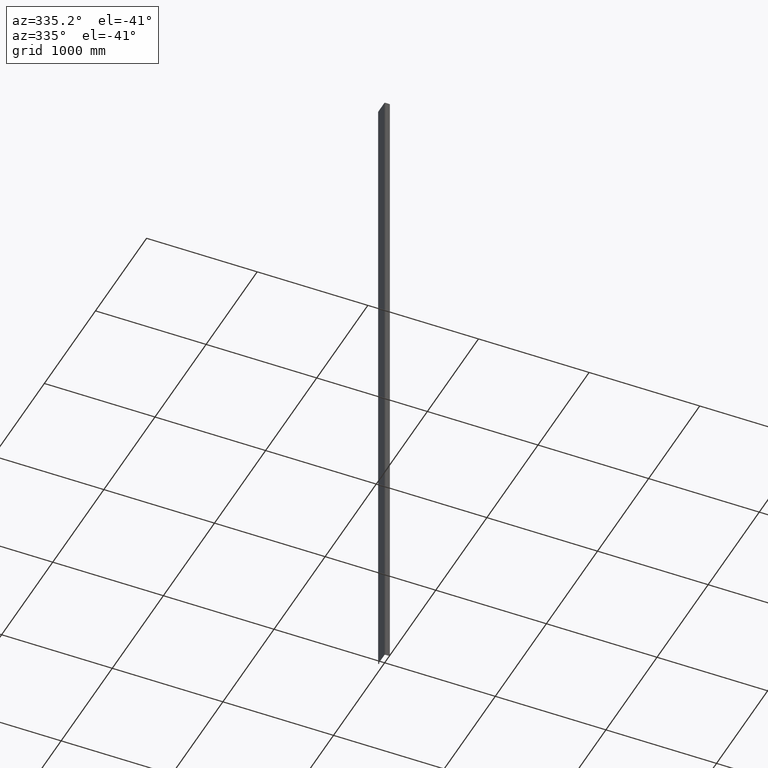
[diagram: clean part render]
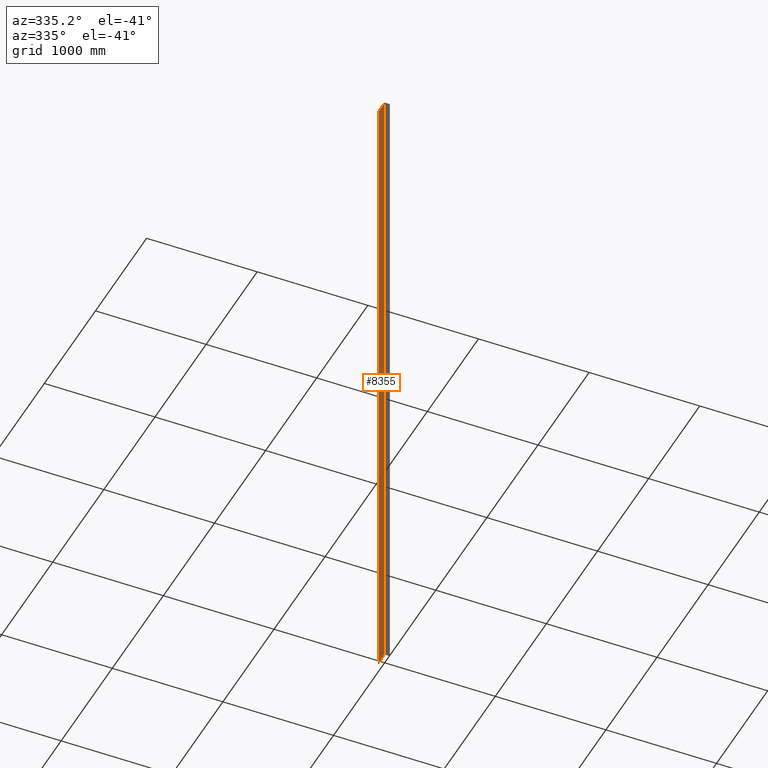
[diagram: same view with one face highlighted and labeled with its STEP entity id]
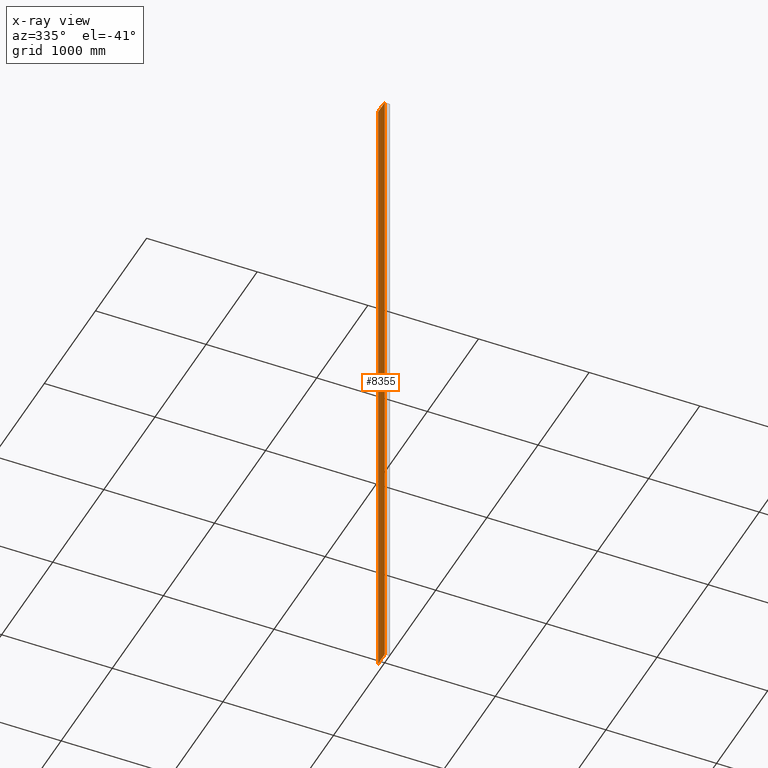
[diagram: x-ray of the same camera — body ghosted, the highlighted face saturated]
A machine part, auxiliary view. The second image highlights one B-rep face of the part: STEP entity #8355.
The next image is the same camera in x-ray: the body ghosted, the highlighted face saturated — about 0% of this face is hidden behind the body in this view.
In plain terms, the highlighted planar face has unit normal (1, 0, -0).
Its self-contained STEP definition (entity closure, byte-faithful):
#292 = VECTOR ( 'NONE', #12943, 1000.000000000000000 ) ;
#742 = ORIENTED_EDGE ( 'NONE', *, *, #2855, .F. ) ;
#799 = EDGE_CURVE ( 'NONE', #12389, #12668, #1431, .T. ) ;
#989 = CARTESIAN_POINT ( 'NONE',  ( -1.734723475976807100E-015, 126.2999999999838100, 3000.000000000000000 ) ) ;
#1431 = LINE ( 'NONE', #4673, #10690 ) ;
#1625 = VERTEX_POINT ( 'NONE', #989 ) ;
#2855 = EDGE_CURVE ( 'NONE', #1625, #9579, #8242, .T. ) ;
#4156 = DIRECTION ( 'NONE',  ( 1.392233929354566900E-017, -1.000000000000000000, 0.0000000000000000000 ) ) ;
#4373 = EDGE_CURVE ( 'NONE', #1625, #12389, #10388, .T. ) ;
#4673 = CARTESIAN_POINT ( 'NONE',  ( -1.734723475976807100E-015, 126.2999999999838100, -3000.000000000000000 ) ) ;
#4920 = EDGE_LOOP ( 'NONE', ( #5790, #6999, #742, #11131 ) ) ;
#5372 = CARTESIAN_POINT ( 'NONE',  ( -1.734723475976807100E-015, 126.2999999999838100, 3000.000000000000000 ) ) ;
#5499 = VECTOR ( 'NONE', #4156, 1000.000000000000000 ) ;
#5646 = FACE_OUTER_BOUND ( 'NONE', #4920, .T. ) ;
#5790 = ORIENTED_EDGE ( 'NONE', *, *, #799, .T. ) ;
#6128 = CARTESIAN_POINT ( 'NONE',  ( -1.734723475976807100E-015, 126.2999999999838100, 3000.000000000000000 ) ) ;
#6999 = ORIENTED_EDGE ( 'NONE', *, *, #11429, .F. ) ;
#7193 = CARTESIAN_POINT ( 'NONE',  ( -1.734723475976807100E-015, 126.2999999999838100, -3000.000000000000000 ) ) ;
#7211 = VECTOR ( 'NONE', #11102, 1000.000000000000000 ) ;
#7271 = PLANE ( 'NONE',  #9516 ) ;
#7318 = DIRECTION ( 'NONE',  ( 1.000000000000000000, 1.392233929354566600E-017, -0.0000000000000000000 ) ) ;
#8198 = CARTESIAN_POINT ( 'NONE',  ( -1.734723475976807100E-015, 126.2999999999838100, 3000.000000000000000 ) ) ;
#8242 = LINE ( 'NONE', #6128, #5499 ) ;
#8355 = ADVANCED_FACE ( 'NONE', ( #5646 ), #7271, .F. ) ;
#8359 = DIRECTION ( 'NONE',  ( -1.392233929354566600E-017, 1.000000000000000000, 0.0000000000000000000 ) ) ;
#8851 = LINE ( 'NONE', #9946, #7211 ) ;
#8975 = CARTESIAN_POINT ( 'NONE',  ( 0.0000000000000000000, 1.699999999910773100, -3000.000000000000000 ) ) ;
#9516 = AXIS2_PLACEMENT_3D ( 'NONE', #5372, #7318, #8359 ) ;
#9579 = VERTEX_POINT ( 'NONE', #9773 ) ;
#9773 = CARTESIAN_POINT ( 'NONE',  ( 0.0000000000000000000, 1.699999999910773100, 3000.000000000000000 ) ) ;
#9946 = CARTESIAN_POINT ( 'NONE',  ( 0.0000000000000000000, 1.699999999910773100, 3000.000000000000000 ) ) ;
#10388 = LINE ( 'NONE', #8198, #292 ) ;
#10690 = VECTOR ( 'NONE', #11795, 1000.000000000000000 ) ;
#11102 = DIRECTION ( 'NONE',  ( -0.0000000000000000000, -0.0000000000000000000, -1.000000000000000000 ) ) ;
#11131 = ORIENTED_EDGE ( 'NONE', *, *, #4373, .T. ) ;
#11429 = EDGE_CURVE ( 'NONE', #9579, #12668, #8851, .T. ) ;
#11795 = DIRECTION ( 'NONE',  ( 1.392233929354566900E-017, -1.000000000000000000, 0.0000000000000000000 ) ) ;
#12389 = VERTEX_POINT ( 'NONE', #7193 ) ;
#12668 = VERTEX_POINT ( 'NONE', #8975 ) ;
#12943 = DIRECTION ( 'NONE',  ( -0.0000000000000000000, -0.0000000000000000000, -1.000000000000000000 ) ) ;